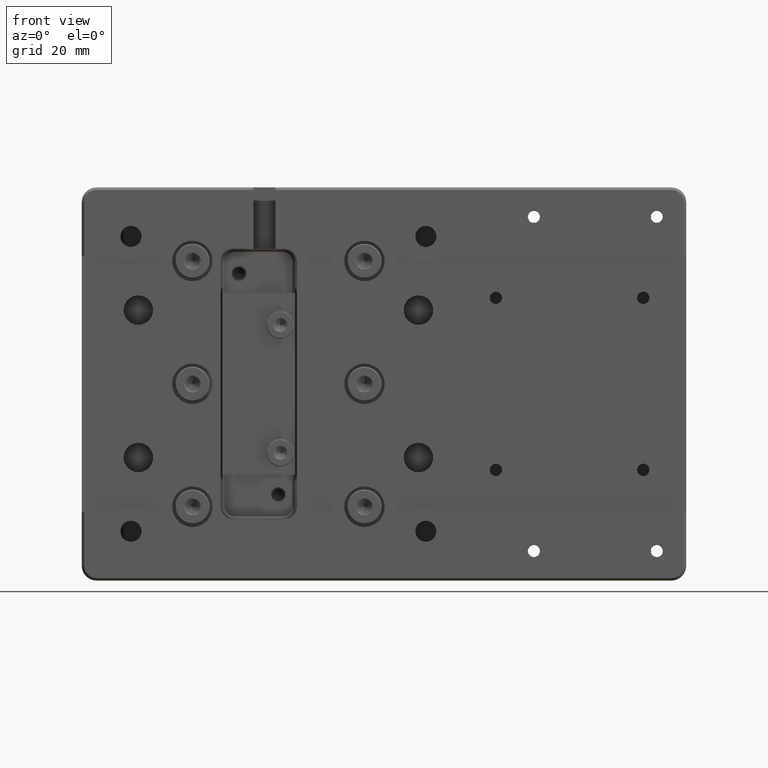
[diagram: clean part render]
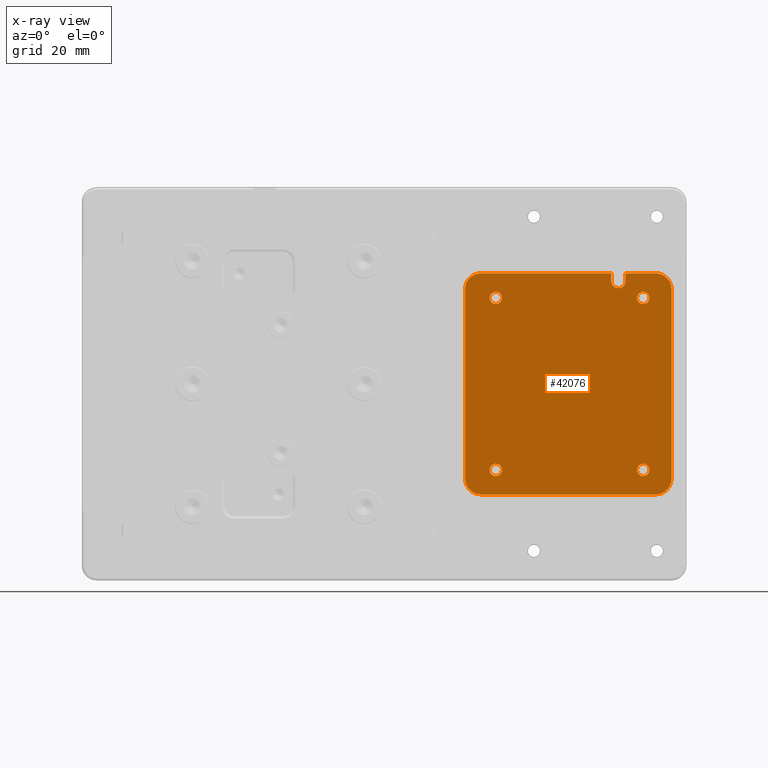
[diagram: x-ray — body ghosted, one internal face saturated and labeled with its STEP entity id]
A machine part, front view, then the same camera in x-ray: the body is ghosted and one INTERNAL B-rep face — a face not visible from any outside direction — is saturated and labeled: STEP entity #42076.
In plain terms, the highlighted planar face has unit normal (0, 1, 0).
Its self-contained STEP definition (entity closure, byte-faithful):
#283 = DIRECTION ( 'NONE',  ( -0.0000000000000000000, 0.0000000000000000000, -1.000000000000000000 ) ) ;
#301 = ORIENTED_EDGE ( 'NONE', *, *, #58207, .T. ) ;
#314 = CIRCLE ( 'NONE', #7036, 1.250000000000001100 ) ;
#633 = CARTESIAN_POINT ( 'NONE',  ( 39.23690894713415400, -1.500000000000000200, -21.86219036681460200 ) ) ;
#675 = CARTESIAN_POINT ( 'NONE',  ( 37.99999999999999300, -1.500000000000000000, 23.40000000000000600 ) ) ;
#857 = CARTESIAN_POINT ( 'NONE',  ( 79.91839762891049800, -1.500000000000000200, -20.13315191641178400 ) ) ;
#1298 = EDGE_CURVE ( 'NONE', #25568, #15084, #21097, .T. ) ;
#1332 = CARTESIAN_POINT ( 'NONE',  ( 67.93355094029000400, -1.500000000000000200, 20.21807354496660700 ) ) ;
#1542 = CARTESIAN_POINT ( 'NONE',  ( 70.65000000000000600, -1.500000000000000400, 20.75734514498788700 ) ) ;
#1943 = CARTESIAN_POINT ( 'NONE',  ( 67.75000000000000000, -1.500000000000000000, 20.94999999999999600 ) ) ;
#2123 = DIRECTION ( 'NONE',  ( 0.0000000000000000000, -3.469446951953611200E-016, 1.000000000000000000 ) ) ;
#2623 = B_SPLINE_CURVE_WITH_KNOTS ( 'NONE', 3,
 ( #23140, #53304, #63475, #33269, #3041, #38343, #8153, #43394, #13224, #48443 ),
 .UNSPECIFIED., .F., .F.,
 ( 4, 2, 2, 2, 4 ),
 ( 0.0000000000000000000, 0.2500000000000000000, 0.5000000000000000000, 0.7500000000000000000, 1.000000000000000000 ),
 .UNSPECIFIED. ) ;
#2747 = CARTESIAN_POINT ( 'NONE',  ( 74.25000000000000000, -1.499999999999999600, 17.50000000000000700 ) ) ;
#2882 = CARTESIAN_POINT ( 'NONE',  ( 74.25000000000000000, -1.499999999999999100, 16.25000000000000700 ) ) ;
#3041 = CARTESIAN_POINT ( 'NONE',  ( 38.63780963317355300, -1.500000000000000200, 21.26309105285800500 ) ) ;
#3232 = B_SPLINE_CURVE_WITH_KNOTS ( 'NONE', 3,
 ( #60141, #49952, #4825, #40084, #9917, #45140, #14988, #50185, #20053, #55247 ),
 .UNSPECIFIED., .F., .F.,
 ( 4, 2, 2, 2, 4 ),
 ( 0.0000000000000000000, 0.2500000000000000000, 0.5000000000000000000, 0.7500000000000000000, 1.000000000000000000 ),
 .UNSPECIFIED. ) ;
#3497 = CIRCLE ( 'NONE', #51094, 1.250000000000001100 ) ;
#3763 = VERTEX_POINT ( 'NONE', #37914 ) ;
#4095 = CARTESIAN_POINT ( 'NONE',  ( 37.99999999999999300, -1.500000000000000400, 19.29999999999999700 ) ) ;
#4345 = EDGE_CURVE ( 'NONE', #43226, #6472, #314, .T. ) ;
#4748 = CARTESIAN_POINT ( 'NONE',  ( 44.25000000000000000, -1.499999999999999600, -17.50000000000000000 ) ) ;
#4774 = EDGE_CURVE ( 'NONE', #16508, #26399, #65001, .T. ) ;
#4825 = CARTESIAN_POINT ( 'NONE',  ( 77.63315191640337800, -1.500000000000000200, 22.41839762891618500 ) ) ;
#5394 = CARTESIAN_POINT ( 'NONE',  ( 79.99999999999998600, -1.500000000000000000, 23.40000000000000600 ) ) ;
#5736 = CARTESIAN_POINT ( 'NONE',  ( 38.40597582660647200, -1.500000000000000200, -20.91625846452213000 ) ) ;
#5969 = CARTESIAN_POINT ( 'NONE',  ( 79.36219036682298600, -1.500000000000000200, -21.26309105286010800 ) ) ;
#6086 = VERTEX_POINT ( 'NONE', #17630 ) ;
#6439 = CARTESIAN_POINT ( 'NONE',  ( 68.31004976313182900, -1.499999999999999800, 19.78913905567300400 ) ) ;
#6472 = VERTEX_POINT ( 'NONE', #60755 ) ;
#7036 = AXIS2_PLACEMENT_3D ( 'NONE', #46839, #16693, #51887 ) ;
#7683 = ORIENTED_EDGE ( 'NONE', *, *, #13042, .T. ) ;
#7855 = DIRECTION ( 'NONE',  ( 0.0000000000000000000, -3.469446951953611200E-016, 1.000000000000000000 ) ) ;
#8153 = CARTESIAN_POINT ( 'NONE',  ( 39.58374153547086400, -1.500000000000000200, 22.09402417339353200 ) ) ;
#8439 = EDGE_CURVE ( 'NONE', #30990, #61500, #14726, .T. ) ;
#9040 = CARTESIAN_POINT ( 'NONE',  ( 79.99999999999998600, -1.500000000000000400, 19.29999999999999700 ) ) ;
#9199 = CARTESIAN_POINT ( 'NONE',  ( 74.25000000000000000, -1.499999999999999600, -17.50000000000000000 ) ) ;
#9729 = FACE_BOUND ( 'NONE', #9900, .T. ) ;
#9840 = DIRECTION ( 'NONE',  ( 0.0000000000000000000, -3.469446951953611200E-016, 1.000000000000000000 ) ) ;
#9900 = EDGE_LOOP ( 'NONE', ( #53948, #21739 ) ) ;
#9917 = CARTESIAN_POINT ( 'NONE',  ( 78.76309105283704100, -1.500000000000000200, 21.86219036684875800 ) ) ;
#10288 = LINE ( 'NONE', #5394, #11888 ) ;
#10834 = CARTESIAN_POINT ( 'NONE',  ( 38.00000000000000000, -1.500000000000000200, -19.72471984142501000 ) ) ;
#11050 = CARTESIAN_POINT ( 'NONE',  ( 78.41625846452748800, -1.500000000000000200, -22.09402417339353200 ) ) ;
#11324 = FACE_BOUND ( 'NONE', #48030, .T. ) ;
#11539 = CARTESIAN_POINT ( 'NONE',  ( 68.82203544188146800, -1.499999999999999800, 19.53693512216606400 ) ) ;
#11855 = CARTESIAN_POINT ( 'NONE',  ( 80.84000000000000300, -1.500000000000000000, 22.50000000000000000 ) ) ;
#11888 = VECTOR ( 'NONE', #283, 1000.000000000000000 ) ;
#12330 = CARTESIAN_POINT ( 'NONE',  ( 41.19999999999998900, -1.500000000000000400, -22.49999999999999300 ) ) ;
#12422 = ORIENTED_EDGE ( 'NONE', *, *, #63185, .T. ) ;
#12892 = EDGE_LOOP ( 'NONE', ( #59224, #301 ) ) ;
#13042 = EDGE_CURVE ( 'NONE', #28336, #16508, #56382, .T. ) ;
#13106 = CARTESIAN_POINT ( 'NONE',  ( 70.64999999999999100, -1.500000000000000200, 22.50000000000000400 ) ) ;
#13224 = CARTESIAN_POINT ( 'NONE',  ( 40.77528015858197100, -1.500000000000000200, 22.50000000000000000 ) ) ;
#13764 = CARTESIAN_POINT ( 'NONE',  ( 37.99999999999999300, -1.500000000000000400, -19.29999999999999700 ) ) ;
#14010 = AXIS2_PLACEMENT_3D ( 'NONE', #2747, #38051, #7855 ) ;
#14257 = DIRECTION ( 'NONE',  ( 0.0000000000000000000, -3.469446951953611200E-016, 1.000000000000000000 ) ) ;
#14430 = ORIENTED_EDGE ( 'NONE', *, *, #48882, .T. ) ;
#14474 = DIRECTION ( 'NONE',  ( -0.0000000000000000000, 0.0000000000000000000, -1.000000000000000000 ) ) ;
#14680 = CARTESIAN_POINT ( 'NONE',  ( 74.25000000000000000, -1.500000000000000000, 18.75000000000001100 ) ) ;
#14726 = LINE ( 'NONE', #46474, #53339 ) ;
#14988 = CARTESIAN_POINT ( 'NONE',  ( 79.59402417339354900, -1.500000000000000200, 20.91625846455730900 ) ) ;
#15084 = VERTEX_POINT ( 'NONE', #52573 ) ;
#15615 = AXIS2_PLACEMENT_3D ( 'NONE', #4748, #40010, #9840 ) ;
#15622 = ORIENTED_EDGE ( 'NONE', *, *, #51473, .T. ) ;
#15810 = ORIENTED_EDGE ( 'NONE', *, *, #48135, .T. ) ;
#16020 = EDGE_CURVE ( 'NONE', #46726, #16105, #25122, .T. ) ;
#16105 = VERTEX_POINT ( 'NONE', #24160 ) ;
#16128 = CARTESIAN_POINT ( 'NONE',  ( 77.22471984141967000, -1.500000000000000200, -22.50000000000000000 ) ) ;
#16508 = VERTEX_POINT ( 'NONE', #13764 ) ;
#16608 = CARTESIAN_POINT ( 'NONE',  ( 69.39156279833798600, -1.499999999999999800, 19.49985750684517800 ) ) ;
#16654 = VERTEX_POINT ( 'NONE', #19930 ) ;
#16693 = DIRECTION ( 'NONE',  ( -0.0000000000000000000, -1.000000000000000000, -3.469446951953610700E-016 ) ) ;
#17018 = CARTESIAN_POINT ( 'NONE',  ( 80.84000000000000300, -1.500000000000000000, 23.40000000000000600 ) ) ;
#17630 = CARTESIAN_POINT ( 'NONE',  ( 74.25000000000000000, -1.500000000000000000, -16.25000000000000000 ) ) ;
#17912 = VECTOR ( 'NONE', #59057, 1000.000000000000000 ) ;
#17979 = EDGE_CURVE ( 'NONE', #16105, #39422, #3232, .T. ) ;
#18096 = CIRCLE ( 'NONE', #23444, 1.250000000000001100 ) ;
#18464 = CARTESIAN_POINT ( 'NONE',  ( 80.84000000000000300, -1.500000000000000000, 22.50000000000000400 ) ) ;
#18740 = DIRECTION ( 'NONE',  ( -0.0000000000000000000, -1.000000000000000000, -3.469446951953611200E-016 ) ) ;
#19126 = EDGE_CURVE ( 'NONE', #61500, #3763, #64086, .T. ) ;
#19381 = VECTOR ( 'NONE', #55296, 1000.000000000000000 ) ;
#19930 = CARTESIAN_POINT ( 'NONE',  ( 79.99999999999998600, -1.500000000000000400, -19.29999999999999700 ) ) ;
#20053 = CARTESIAN_POINT ( 'NONE',  ( 79.99999999999998600, -1.500000000000000200, 19.72471984138984900 ) ) ;
#20937 = LINE ( 'NONE', #55078, #19381 ) ;
#21097 = CIRCLE ( 'NONE', #47308, 1.250000000000001100 ) ;
#21435 = CARTESIAN_POINT ( 'NONE',  ( 67.75000000000001400, -1.499999999999999800, 20.75809246802709400 ) ) ;
#21665 = CARTESIAN_POINT ( 'NONE',  ( 69.93192645527567200, -1.499999999999999800, 19.68355094052949600 ) ) ;
#21739 = ORIENTED_EDGE ( 'NONE', *, *, #64261, .T. ) ;
#22074 = DIRECTION ( 'NONE',  ( 0.0000000000000000000, -0.0000000000000000000, 1.000000000000000000 ) ) ;
#22181 = CIRCLE ( 'NONE', #28257, 1.250000000000001100 ) ;
#22513 = DIRECTION ( 'NONE',  ( -0.0000000000000000000, -1.000000000000000000, -3.469446951953610700E-016 ) ) ;
#22666 = CIRCLE ( 'NONE', #32933, 1.250000000000001100 ) ;
#23140 = CARTESIAN_POINT ( 'NONE',  ( 37.99999999999999300, -1.500000000000000400, 19.29999999999999700 ) ) ;
#23151 = FACE_OUTER_BOUND ( 'NONE', #61011, .T. ) ;
#23444 = AXIS2_PLACEMENT_3D ( 'NONE', #9199, #44441, #14257 ) ;
#23841 = AXIS2_PLACEMENT_3D ( 'NONE', #17018, #52215, #22074 ) ;
#24160 = CARTESIAN_POINT ( 'NONE',  ( 76.79999999999998300, -1.500000000000000000, 22.50000000000000400 ) ) ;
#25020 = EDGE_CURVE ( 'NONE', #15084, #25568, #26606, .T. ) ;
#25122 = LINE ( 'NONE', #18464, #53489 ) ;
#25568 = VERTEX_POINT ( 'NONE', #60887 ) ;
#25591 = DIRECTION ( 'NONE',  ( -0.0000000000000000000, -1.000000000000000000, -3.469446951953611200E-016 ) ) ;
#25809 = DIRECTION ( 'NONE',  ( 0.0000000000000000000, -0.0000000000000000000, 1.000000000000000000 ) ) ;
#25818 = CARTESIAN_POINT ( 'NONE',  ( 41.19999999999998900, -1.500000000000000400, -22.49999999999999300 ) ) ;
#26399 = VERTEX_POINT ( 'NONE', #4095 ) ;
#26606 = CIRCLE ( 'NONE', #15615, 1.250000000000001100 ) ;
#26724 = CARTESIAN_POINT ( 'NONE',  ( 70.36086107304419100, -1.499999999999999800, 20.06004989166007800 ) ) ;
#27186 = ORIENTED_EDGE ( 'NONE', *, *, #4774, .T. ) ;
#27991 = VERTEX_POINT ( 'NONE', #2882 ) ;
#28257 = AXIS2_PLACEMENT_3D ( 'NONE', #52652, #22513, #57731 ) ;
#28336 = VERTEX_POINT ( 'NONE', #12330 ) ;
#30840 = CARTESIAN_POINT ( 'NONE',  ( 39.58397794928781400, -1.500000000000000200, -22.09443137917166700 ) ) ;
#30990 = VERTEX_POINT ( 'NONE', #45218 ) ;
#31537 = CARTESIAN_POINT ( 'NONE',  ( 67.78719841542725500, -1.500000000000000200, 20.57214450117464100 ) ) ;
#31759 = CARTESIAN_POINT ( 'NONE',  ( 70.61320844071379100, -1.500000000000000200, 20.57238148601142700 ) ) ;
#32329 = DIRECTION ( 'NONE',  ( -0.0000000000000000000, -1.000000000000000000, -3.469446951953610700E-016 ) ) ;
#32857 = LINE ( 'NONE', #11855, #17912 ) ;
#32933 = AXIS2_PLACEMENT_3D ( 'NONE', #55736, #25591, #60837 ) ;
#33269 = CARTESIAN_POINT ( 'NONE',  ( 38.40556862084107300, -1.500000000000000200, 20.91602205072897300 ) ) ;
#34406 = VERTEX_POINT ( 'NONE', #44983 ) ;
#34564 = EDGE_CURVE ( 'NONE', #16654, #34406, #46276, .T. ) ;
#35001 = VECTOR ( 'NONE', #41039, 1000.000000000000000 ) ;
#35880 = ORIENTED_EDGE ( 'NONE', *, *, #49558, .T. ) ;
#35925 = CARTESIAN_POINT ( 'NONE',  ( 38.63760765327190700, -1.499999999999999800, -21.26329303277928400 ) ) ;
#36153 = CARTESIAN_POINT ( 'NONE',  ( 79.59443137916173300, -1.500000000000000200, -20.91602205072477700 ) ) ;
#36201 = EDGE_LOOP ( 'NONE', ( #40727, #14430 ) ) ;
#36530 = FACE_BOUND ( 'NONE', #36201, .T. ) ;
#36629 = CARTESIAN_POINT ( 'NONE',  ( 68.03934057142717500, -1.500000000000000200, 20.06025127888601400 ) ) ;
#36859 = CARTESIAN_POINT ( 'NONE',  ( 70.64999999999999100, -1.500000000000000000, 20.94999999999999600 ) ) ;
#37539 = CIRCLE ( 'NONE', #14010, 1.250000000000001100 ) ;
#37914 = CARTESIAN_POINT ( 'NONE',  ( 70.64999999999999100, -1.500000000000000000, 20.94999999999999600 ) ) ;
#38051 = DIRECTION ( 'NONE',  ( -0.0000000000000000000, -1.000000000000000000, -3.469446951953611200E-016 ) ) ;
#38141 = EDGE_CURVE ( 'NONE', #51584, #30990, #32857, .T. ) ;
#38343 = CARTESIAN_POINT ( 'NONE',  ( 39.23670696723255000, -1.499999999999999800, 21.86239234673590900 ) ) ;
#39422 = VERTEX_POINT ( 'NONE', #9040 ) ;
#40010 = DIRECTION ( 'NONE',  ( -0.0000000000000000000, -1.000000000000000000, -3.469446951953610700E-016 ) ) ;
#40065 = VERTEX_POINT ( 'NONE', #45513 ) ;
#40084 = CARTESIAN_POINT ( 'NONE',  ( 78.41602205073313300, -1.500000000000000200, 22.09443137915607700 ) ) ;
#40727 = ORIENTED_EDGE ( 'NONE', *, *, #46842, .T. ) ;
#40983 = CARTESIAN_POINT ( 'NONE',  ( 38.08119516532129700, -1.500000000000000200, -20.13291550261444800 ) ) ;
#41039 = DIRECTION ( 'NONE',  ( 0.0000000000000000000, -0.0000000000000000000, 1.000000000000000000 ) ) ;
#41224 = CARTESIAN_POINT ( 'NONE',  ( 78.76329303277090300, -1.499999999999999800, -21.86239234673379900 ) ) ;
#41692 = CARTESIAN_POINT ( 'NONE',  ( 68.46818260425978100, -1.500000000000000200, 19.68381423355121000 ) ) ;
#41846 = ORIENTED_EDGE ( 'NONE', *, *, #16020, .T. ) ;
#42076 = ADVANCED_FACE ( 'NONE', ( #23151, #64938, #11324, #36530, #9729 ), #56869, .T. ) ;
#42914 = ORIENTED_EDGE ( 'NONE', *, *, #38141, .T. ) ;
#42954 = VECTOR ( 'NONE', #25809, 1000.000000000000000 ) ;
#43226 = VERTEX_POINT ( 'NONE', #50575 ) ;
#43380 = ORIENTED_EDGE ( 'NONE', *, *, #25020, .T. ) ;
#43394 = CARTESIAN_POINT ( 'NONE',  ( 40.36708449739254700, -1.500000000000000200, 22.41880483467870600 ) ) ;
#44259 = CARTESIAN_POINT ( 'NONE',  ( 41.19999999999998200, -1.500000000000000400, 22.50000000000000000 ) ) ;
#44441 = DIRECTION ( 'NONE',  ( -0.0000000000000000000, -1.000000000000000000, -3.469446951953611200E-016 ) ) ;
#44983 = CARTESIAN_POINT ( 'NONE',  ( 76.79999999999998300, -1.500000000000000400, -22.50000000000000000 ) ) ;
#45140 = CARTESIAN_POINT ( 'NONE',  ( 79.36239234675684900, -1.499999999999999800, 21.26329303274518200 ) ) ;
#45218 = CARTESIAN_POINT ( 'NONE',  ( 67.75000000000000000, -1.500000000000000200, 22.50000000000000400 ) ) ;
#45513 = CARTESIAN_POINT ( 'NONE',  ( 74.25000000000000000, -1.499999999999999100, -18.75000000000000400 ) ) ;
#45838 = CARTESIAN_POINT ( 'NONE',  ( 70.64999999999999100, -1.500000000000000000, 23.40000000000000600 ) ) ;
#46049 = CARTESIAN_POINT ( 'NONE',  ( 37.99999999999999300, -1.500000000000000400, -19.29999999999999700 ) ) ;
#46057 = CARTESIAN_POINT ( 'NONE',  ( 79.99999999999998600, -1.500000000000000400, -19.29999999999999700 ) ) ;
#46276 = B_SPLINE_CURVE_WITH_KNOTS ( 'NONE', 3,
 ( #46057, #51107, #857, #36153, #5969, #41224, #11050, #46286, #16128, #51323 ),
 .UNSPECIFIED., .F., .F.,
 ( 4, 2, 2, 2, 4 ),
 ( 0.0000000000000000000, 0.2500000000000000000, 0.5000000000000000000, 0.7500000000000000000, 1.000000000000000000 ),
 .UNSPECIFIED. ) ;
#46286 = CARTESIAN_POINT ( 'NONE',  ( 77.63291550260910900, -1.500000000000000200, -22.41880483467871300 ) ) ;
#46474 = CARTESIAN_POINT ( 'NONE',  ( 67.75000000000000000, -1.500000000000000000, 23.40000000000000600 ) ) ;
#46672 = ORIENTED_EDGE ( 'NONE', *, *, #34564, .T. ) ;
#46726 = VERTEX_POINT ( 'NONE', #13106 ) ;
#46751 = CARTESIAN_POINT ( 'NONE',  ( 69.00843720166201900, -1.500000000000000200, 19.50014249315482600 ) ) ;
#46839 = CARTESIAN_POINT ( 'NONE',  ( 44.25000000000000000, -1.499999999999999600, 17.50000000000000700 ) ) ;
#46842 = EDGE_CURVE ( 'NONE', #60349, #27991, #22666, .T. ) ;
#47308 = AXIS2_PLACEMENT_3D ( 'NONE', #62561, #32329, #2123 ) ;
#48030 = EDGE_LOOP ( 'NONE', ( #43380, #59099 ) ) ;
#48135 = EDGE_CURVE ( 'NONE', #34406, #28336, #20937, .T. ) ;
#48443 = CARTESIAN_POINT ( 'NONE',  ( 41.19999999999998200, -1.500000000000000400, 22.50000000000000000 ) ) ;
#48866 = CARTESIAN_POINT ( 'NONE',  ( 74.25000000000000000, -1.499999999999999600, -17.50000000000000000 ) ) ;
#48882 = EDGE_CURVE ( 'NONE', #27991, #60349, #37539, .T. ) ;
#49558 = EDGE_CURVE ( 'NONE', #3763, #46726, #56332, .T. ) ;
#49952 = CARTESIAN_POINT ( 'NONE',  ( 77.22397223533455700, -1.499999999999999800, 22.50000000000000700 ) ) ;
#50185 = CARTESIAN_POINT ( 'NONE',  ( 79.91880483467869600, -1.500000000000000200, 20.13291550257928000 ) ) ;
#50565 = ORIENTED_EDGE ( 'NONE', *, *, #8439, .T. ) ;
#50575 = CARTESIAN_POINT ( 'NONE',  ( 44.25000000000000000, -1.500000000000000000, 18.75000000000001100 ) ) ;
#51094 = AXIS2_PLACEMENT_3D ( 'NONE', #48866, #18740, #53939 ) ;
#51107 = CARTESIAN_POINT ( 'NONE',  ( 79.99999999999998600, -1.499999999999999800, -19.72397223532922100 ) ) ;
#51323 = CARTESIAN_POINT ( 'NONE',  ( 76.79999999999998300, -1.500000000000000400, -22.50000000000000000 ) ) ;
#51473 = EDGE_CURVE ( 'NONE', #26399, #51584, #2623, .T. ) ;
#51584 = VERTEX_POINT ( 'NONE', #44259 ) ;
#51813 = CARTESIAN_POINT ( 'NONE',  ( 69.57785549858309100, -1.500000000000000200, 19.53719841518776700 ) ) ;
#51887 = DIRECTION ( 'NONE',  ( 0.0000000000000000000, -3.469446951953611200E-016, 1.000000000000000000 ) ) ;
#52215 = DIRECTION ( 'NONE',  ( 0.0000000000000000000, 1.000000000000000000, 0.0000000000000000000 ) ) ;
#52573 = CARTESIAN_POINT ( 'NONE',  ( 44.25000000000000000, -1.500000000000000000, -16.25000000000000000 ) ) ;
#52652 = CARTESIAN_POINT ( 'NONE',  ( 44.25000000000000000, -1.499999999999999600, 17.50000000000000700 ) ) ;
#52702 = ORIENTED_EDGE ( 'NONE', *, *, #17979, .T. ) ;
#53304 = CARTESIAN_POINT ( 'NONE',  ( 37.99999999999999300, -1.499999999999999800, 19.72397223533187800 ) ) ;
#53319 = ORIENTED_EDGE ( 'NONE', *, *, #19126, .T. ) ;
#53339 = VECTOR ( 'NONE', #14474, 1000.000000000000000 ) ;
#53489 = VECTOR ( 'NONE', #58111, 1000.000000000000000 ) ;
#53939 = DIRECTION ( 'NONE',  ( 0.0000000000000000000, -3.469446951953611200E-016, 1.000000000000000000 ) ) ;
#53948 = ORIENTED_EDGE ( 'NONE', *, *, #59912, .T. ) ;
#55078 = CARTESIAN_POINT ( 'NONE',  ( 80.84000000000000300, -1.500000000000000000, -22.50000000000000000 ) ) ;
#55247 = CARTESIAN_POINT ( 'NONE',  ( 79.99999999999998600, -1.500000000000000400, 19.29999999999999700 ) ) ;
#55296 = DIRECTION ( 'NONE',  ( -1.000000000000000000, -0.0000000000000000000, 0.0000000000000000000 ) ) ;
#55736 = CARTESIAN_POINT ( 'NONE',  ( 74.25000000000000000, -1.499999999999999600, 17.50000000000000700 ) ) ;
#55960 = CARTESIAN_POINT ( 'NONE',  ( 40.77602776468218300, -1.499999999999999800, -22.49999999999999300 ) ) ;
#56332 = LINE ( 'NONE', #45838, #42954 ) ;
#56382 = B_SPLINE_CURVE_WITH_KNOTS ( 'NONE', 3,
 ( #25818, #55960, #61064, #30840, #633, #35925, #5736, #40983, #10834, #46049 ),
 .UNSPECIFIED., .F., .F.,
 ( 4, 2, 2, 2, 4 ),
 ( 0.0000000000000000000, 0.2500000000000000000, 0.5000000000000000000, 0.7500000000000000000, 1.000000000000000000 ),
 .UNSPECIFIED. ) ;
#56673 = CARTESIAN_POINT ( 'NONE',  ( 67.75000000000000000, -1.500000000000000000, 20.94999999999999600 ) ) ;
#56869 = PLANE ( 'NONE',  #23841 ) ;
#56898 = CARTESIAN_POINT ( 'NONE',  ( 70.08974859239683000, -1.500000000000000200, 19.78934044289891900 ) ) ;
#57731 = DIRECTION ( 'NONE',  ( 0.0000000000000000000, -3.469446951953611200E-016, 1.000000000000000000 ) ) ;
#58111 = DIRECTION ( 'NONE',  ( 1.000000000000000000, 0.0000000000000000000, -0.0000000000000000000 ) ) ;
#58207 = EDGE_CURVE ( 'NONE', #6472, #43226, #22181, .T. ) ;
#59057 = DIRECTION ( 'NONE',  ( 1.000000000000000000, 0.0000000000000000000, -0.0000000000000000000 ) ) ;
#59099 = ORIENTED_EDGE ( 'NONE', *, *, #1298, .T. ) ;
#59224 = ORIENTED_EDGE ( 'NONE', *, *, #4345, .T. ) ;
#59912 = EDGE_CURVE ( 'NONE', #6086, #40065, #3497, .T. ) ;
#60141 = CARTESIAN_POINT ( 'NONE',  ( 76.79999999999998300, -1.500000000000000000, 22.50000000000000400 ) ) ;
#60349 = VERTEX_POINT ( 'NONE', #14680 ) ;
#60755 = CARTESIAN_POINT ( 'NONE',  ( 44.25000000000000000, -1.499999999999999100, 16.25000000000000700 ) ) ;
#60837 = DIRECTION ( 'NONE',  ( 0.0000000000000000000, -3.469446951953611200E-016, 1.000000000000000000 ) ) ;
#60887 = CARTESIAN_POINT ( 'NONE',  ( 44.25000000000000000, -1.499999999999999100, -18.75000000000000400 ) ) ;
#61011 = EDGE_LOOP ( 'NONE', ( #35880, #41846, #52702, #12422, #46672, #15810, #7683, #27186, #15622, #42914, #50565, #53319 ) ) ;
#61064 = CARTESIAN_POINT ( 'NONE',  ( 40.36684808357561800, -1.500000000000000200, -22.41839762890055700 ) ) ;
#61500 = VERTEX_POINT ( 'NONE', #1943 ) ;
#62002 = CARTESIAN_POINT ( 'NONE',  ( 70.46604220356893200, -1.500000000000000200, 20.21783656012980800 ) ) ;
#62561 = CARTESIAN_POINT ( 'NONE',  ( 44.25000000000000000, -1.499999999999999600, -17.50000000000000000 ) ) ;
#63185 = EDGE_CURVE ( 'NONE', #39422, #16654, #10288, .T. ) ;
#63475 = CARTESIAN_POINT ( 'NONE',  ( 38.08160237108668200, -1.500000000000000200, 20.13315191640759800 ) ) ;
#64086 = B_SPLINE_CURVE_WITH_KNOTS ( 'NONE', 3,
 ( #56673, #21435, #31537, #1332, #36629, #6439, #41692, #11539, #46751, #16608, #51813, #21665, #56898, #26724, #62002, #31759, #1542, #36859 ),
 .UNSPECIFIED., .F., .F.,
 ( 4, 2, 2, 2, 2, 2, 2, 2, 4 ),
 ( 0.0000000000000000000, 0.1250000000000000000, 0.2500000000000000000, 0.3750000000000000000, 0.5000000000000000000, 0.6250000000000000000, 0.7500000000000000000, 0.8750000000000000000, 1.000000000000000000 ),
 .UNSPECIFIED. ) ;
#64261 = EDGE_CURVE ( 'NONE', #40065, #6086, #18096, .T. ) ;
#64938 = FACE_BOUND ( 'NONE', #12892, .T. ) ;
#65001 = LINE ( 'NONE', #675, #35001 ) ;